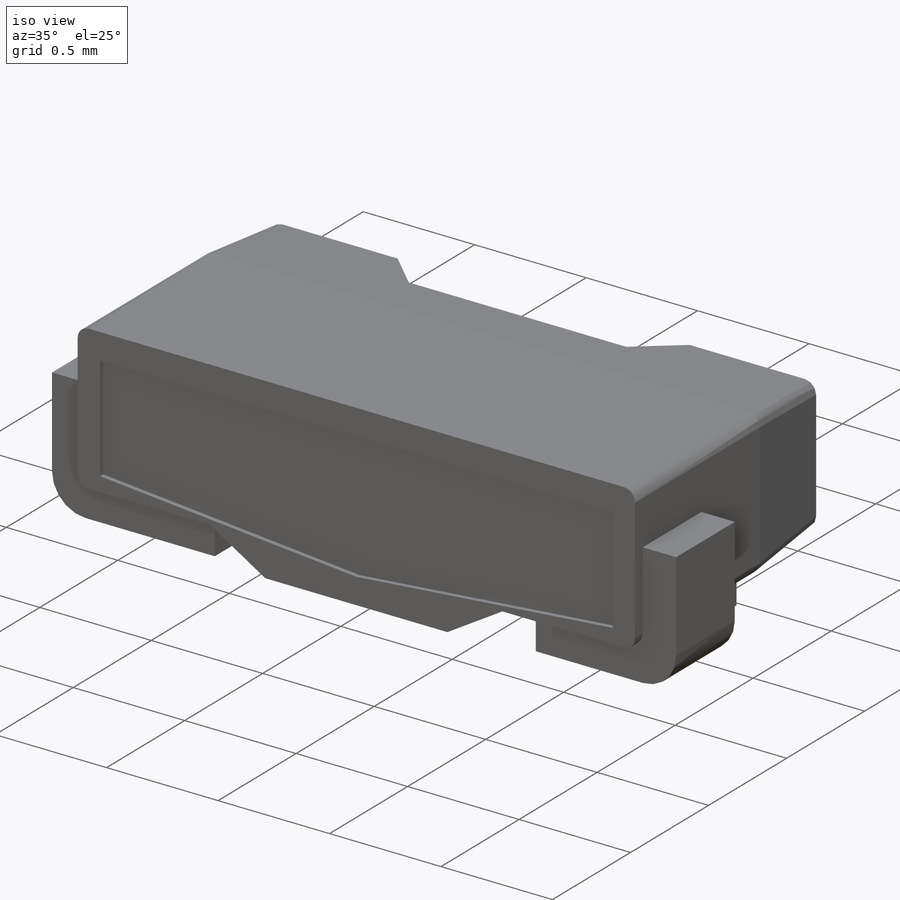
[diagram: iso view]
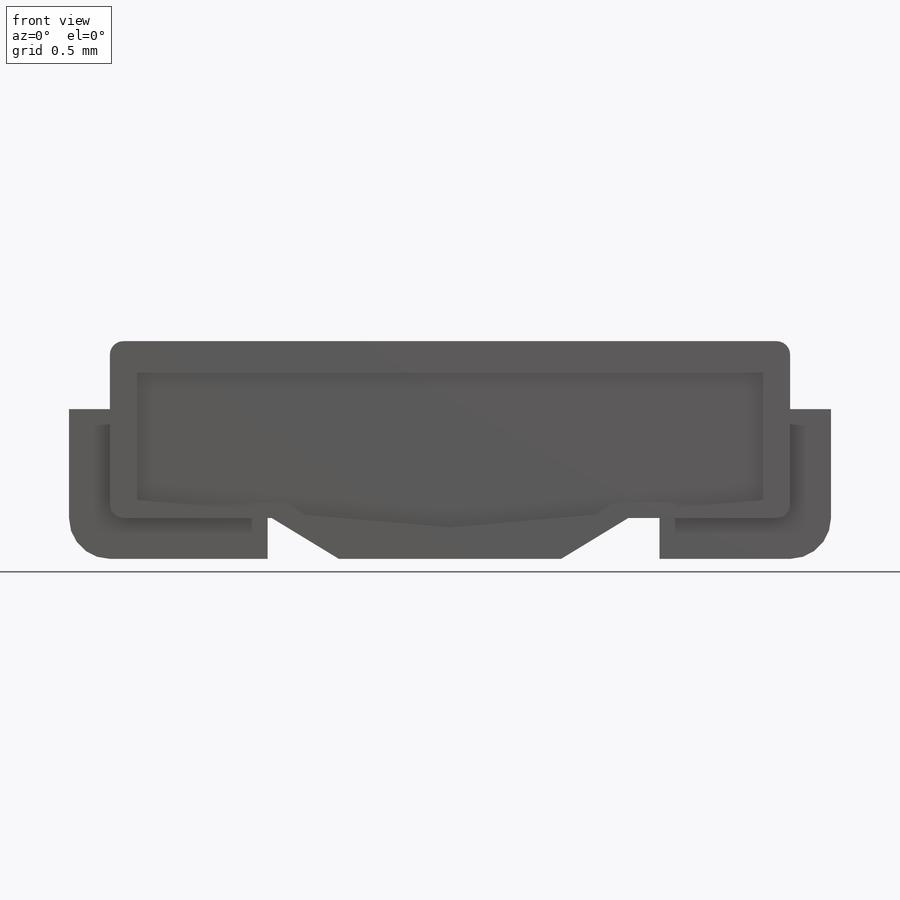
[diagram: front view]
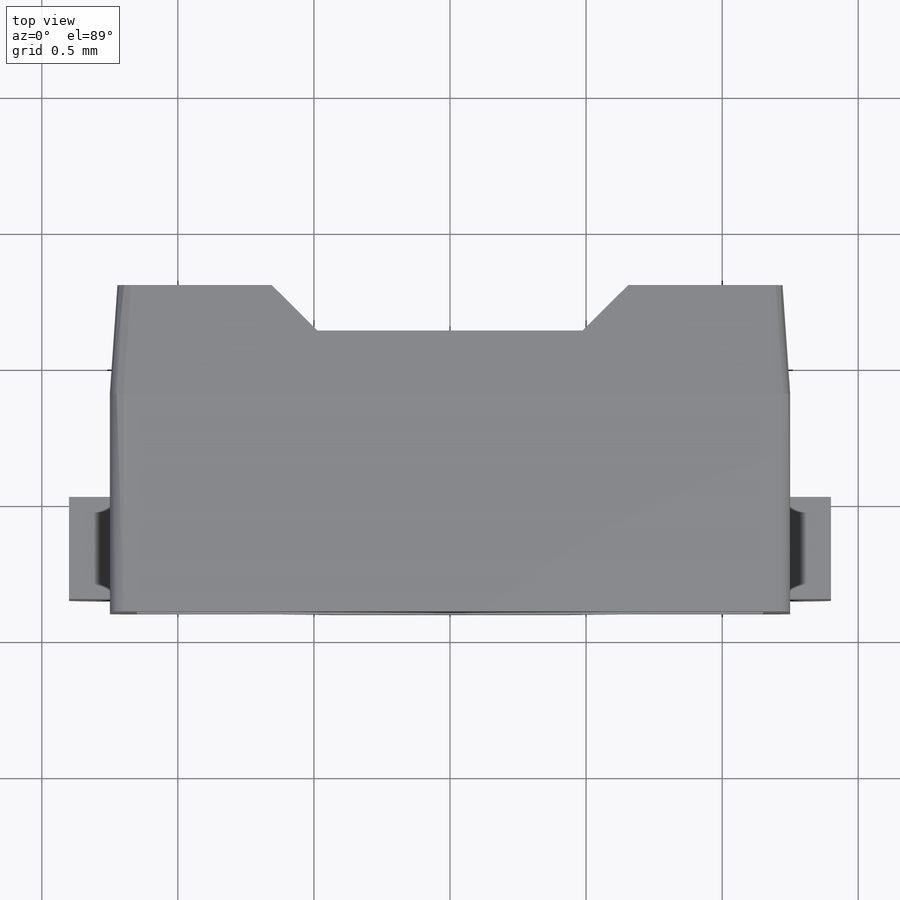
[diagram: top view]
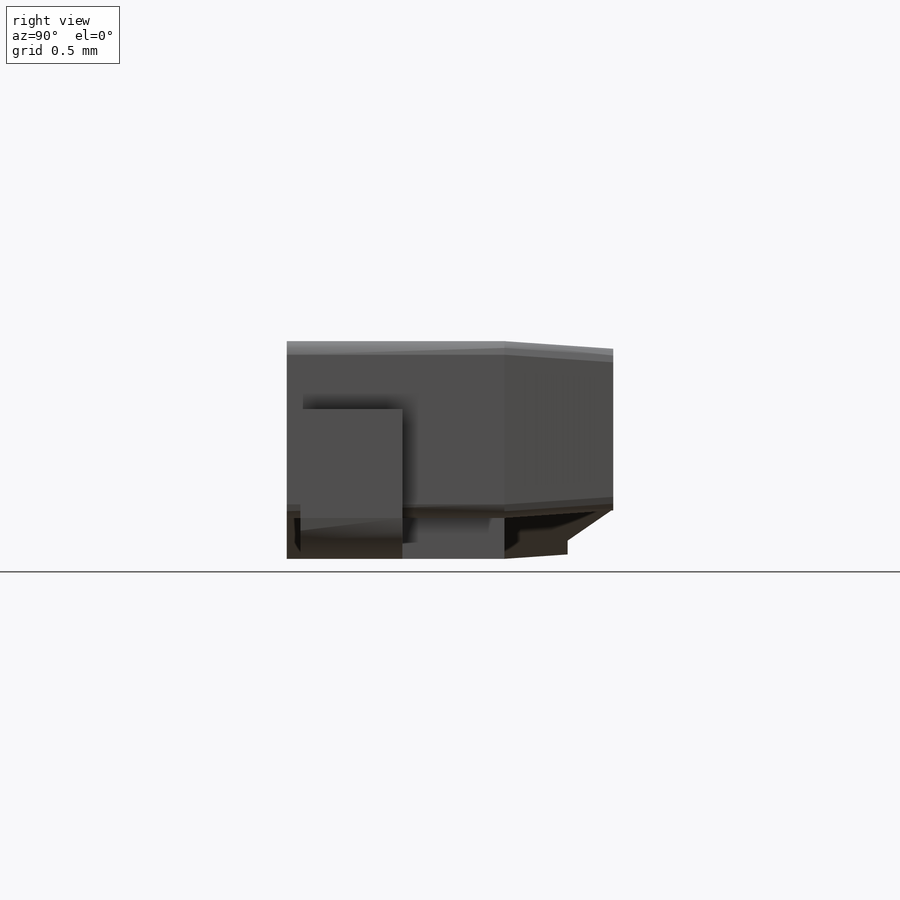
[diagram: right view]
SOLIDWORKS PART (.sldprt)
format: sldprt  version: not decoded by parser v0  size: 687,104 bytes
history: native  units: mm
features: sketch x7, fillet x6, extrude x4, cut_extrude x3, material x1 (+11 scaffold rows collapsed)
feature tree (32):
  scaffold x11  (default folders/planes/origin — collapsed)
  material  "Material <not specified>"
  sketch  "Sketch1"  dims[c1.D9=0.15mm c1.D1=3.2mm c1.D2=~4.291667mm c2.D2=4.0deg c2.D3=0.8mm c2.D4=1.0mm c2.D5=0.36mm c2.D6=2.4mm c3.D5=0.36mm c4.D5=95.0deg c4.D6=~0.361375mm c5.D6=89.0deg c5.D7=1.0mm c5.D8=0.05mm c5.D5=1.1mm c6.D6=0.8mm c6.D5=1.1mm c7.D6=0.8mm c7.D10=0.1mm c7.D5=0.55mm c8.D6=0.6mm c8.D9=~2.700262mm c8.D11=2.8mm c9.D9=~2.700262mm c9.D2=2.5mm c9.D3=0.001mm c9.D4=1.2mm c9.D1=~0.399551mm c10.D1=~86.990357deg c11.D1=~0.399551mm c12.D1=93.0deg c12.D3=0.15mm c12.D4=0.55mm c12.D5=0.8mm c12.D10=0.15mm]
  extrude  "Extrude1"  Depth=0.8mm
  sketch  "Sketch2"  dims[c1.D1=0.45mm c1.D2=0.05mm c1.D3=0.73mm c1.D4=0.63mm c1.D5=2.8mm c1.D6=0.1mm c1.D7=0.1mm c2.D1=0.75mm]
  extrude  "Extrude2"  Depth=0.15mm
  sketch  "Sketch5"  dims[D1=0.15mm D2=0.55mm]
  extrude  "Extrude5"  [1 undecoded]
  fillet  "Fillet3"  Radius=0.15mm
  fillet  "Fillet4"  Radius=0.15mm
  sketch  "Sketch6"  dims[c1.D1=2.14mm c1.D2=0.61mm c2.D1=0.57mm c2.D2=2.06mm c3.D2=5.0deg c3.D3=2.3mm]
  cut_extrude  "Cut-Extrude1"  Depth=0.02mm
  sketch  "Sketch7"
  extrude  "Extrude7"  Depth=0.4mm
  sketch  "Sketch8"  dims[c1.D1=1.2mm c1.D2=0.01mm c1.D3=~0.490975mm c2.D3=5.0deg c2.D4=0.15mm c2.D5=~0.459814mm c3.D5=~137.212443deg c4.D5=~0.368036mm c5.D5=45.0deg]
  cut_extrude  "Cut-Extrude3"  [1 undecoded]
  fillet  "Fillet5"  Radius=0.05mm
  fillet  "Fillet6"  Radius=0.05mm
  fillet  "Fillet7"  Radius=0.05mm
  fillet  "Fillet8"  Radius=0.05mm
  sketch  "Sketch9"
  cut_extrude  "Cut-Extrude4"  Depth=0.0001mm
decode coverage: 16 of 20 modeling features carry decoded parameters
note: ~ marks probable driven/reference dimensions
note: 2 parameter values undecoded
note: suppression state not decoded; provenance and decode notes live in map.json
